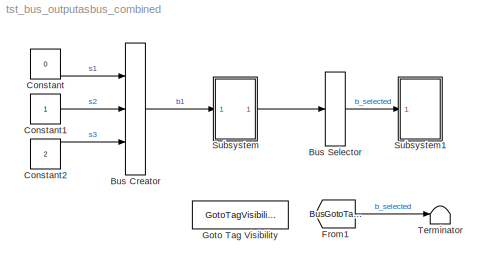
MODEL tst_bus_outputasbus_combined
KIND model
BLOCK [BusCreator] Bus Creator
  DisplayOption = bar
  Inputs = 3
  Ports = [3, 1]
  SID = 1
BLOCK [BusSelector] Bus Selector
  OutputAsBus = on
  OutputSignals = s2,s3
  Ports = [1, 1]
  SID = 2
BLOCK [Constant] Constant
  SID = 3
  Value = 0
BLOCK [Constant] Constant1
  SID = 7
BLOCK [Constant] Constant2
  SID = 4
  Value = 2
BLOCK [From] From1
  GotoTag = BusGotoTag2
  SID = 18
BLOCK [GotoTagVisibility] Goto Tag Visibility
  GotoTag = BusGotoTag2
  SID = 23
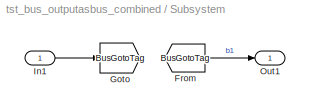
BLOCK [SubSystem] Subsystem
  FunctionWithSeparateData = off
  MaskHideContents = off
  MinAlgLoopOccurrences = off
  Opaque = off
  Ports = [1, 1]
  PropExecContextOutsideSubsystem = off
  RTWSystemCode = Auto
  RequestExecContextInheritance = off
  SID = 20
BLOCK [From] Subsystem/From
  GotoTag = BusGotoTag
  SID = 16
BLOCK [Goto] Subsystem/Goto
  GotoTag = BusGotoTag
  SID = 17
BLOCK [Inport] Subsystem/In1
  IconDisplay = Port number
  SID = 21
BLOCK [Outport] Subsystem/Out1
  IconDisplay = Port number
  SID = 22
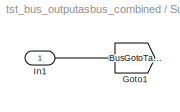
BLOCK [SubSystem] Subsystem1
  FunctionWithSeparateData = off
  MaskHideContents = off
  MinAlgLoopOccurrences = off
  Opaque = off
  Ports = [1]
  PropExecContextOutsideSubsystem = off
  RTWSystemCode = Auto
  RequestExecContextInheritance = off
  SID = 24
BLOCK [Goto] Subsystem1/Goto1
  GotoTag = BusGotoTag2
  SID = 19
  TagVisibility = scoped
BLOCK [Inport] Subsystem1/In1
  IconDisplay = Port number
  SID = 25
BLOCK [Terminator] Terminator
  SID = 5
LINE Bus Creator:1 -> Subsystem:1
LINE Bus Selector:1 -> Subsystem1:1
LINE Constant1:1 -> Bus Creator:2
LINE Constant2:1 -> Bus Creator:3
LINE Constant:1 -> Bus Creator:1
LINE From1:1 -> Terminator:1
LINE Subsystem/From:1 -> Subsystem/Out1:1
LINE Subsystem/In1:1 -> Subsystem/Goto:1
LINE Subsystem1/In1:1 -> Subsystem1/Goto1:1
LINE Subsystem:1 -> Bus Selector:1
